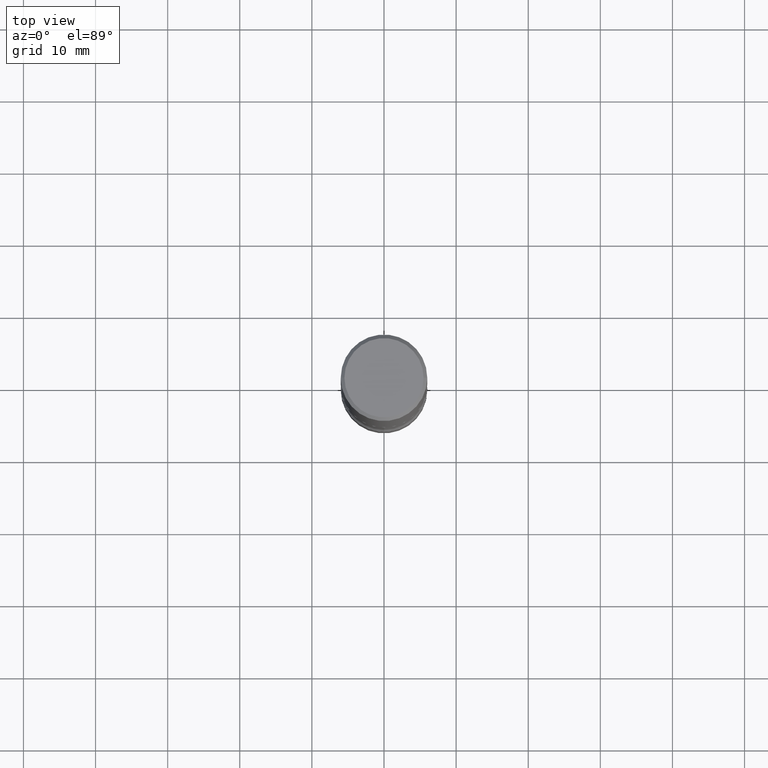
[diagram: clean part render]
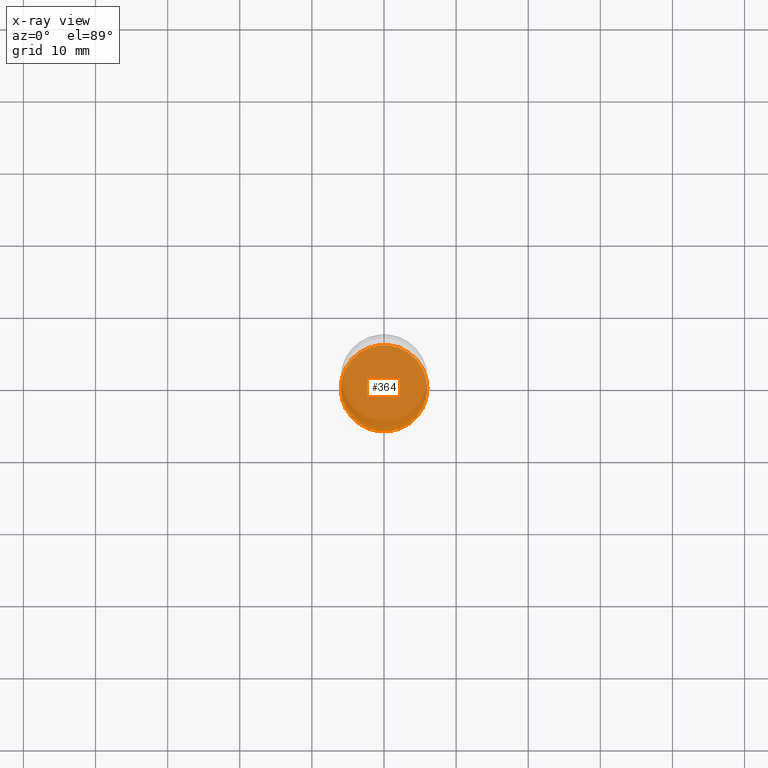
[diagram: x-ray — body ghosted, one internal face saturated and labeled with its STEP entity id]
A machine part, top view, then the same camera in x-ray: the body is ghosted and one INTERNAL B-rep face — a face not visible from any outside direction — is saturated and labeled: STEP entity #364.
In plain terms, the highlighted planar face has unit normal (0, -0, -1).
Its self-contained STEP definition (entity closure, byte-faithful):
#94 = DIRECTION ( 'NONE',  ( -1.000000000000000000, 6.982962677686265922E-15, -4.876176775795935793E-29 ) ) ;
#105 = CIRCLE ( 'NONE', #547, 0.2362000000000004096 ) ;
#139 = EDGE_CURVE ( 'NONE', #187, #487, #401, .T. ) ;
#141 = ORIENTED_EDGE ( 'NONE', *, *, #139, .T. ) ;
#187 = VERTEX_POINT ( 'NONE', #502 ) ;
#237 = DIRECTION ( 'NONE',  ( -2.445468806185136597E-29, 3.491481338843145583E-15, 1.000000000000000000 ) ) ;
#244 = CARTESIAN_POINT ( 'NONE',  ( 8.183516813017940998E-29, -1.168389315230470136E-14, -3.346399999999999597 ) ) ;
#278 = DIRECTION ( 'NONE',  ( 1.000000000000000000, -6.982962677686268288E-15, 0.000000000000000000 ) ) ;
#287 = DIRECTION ( 'NONE',  ( -2.445468806185136597E-29, 3.491481338843145583E-15, 1.000000000000000000 ) ) ;
#289 = AXIS2_PLACEMENT_3D ( 'NONE', #532, #405, #94 ) ;
#303 = ORIENTED_EDGE ( 'NONE', *, *, #531, .T. ) ;
#316 = CARTESIAN_POINT ( 'NONE',  ( -0.2362000000000004096, -1.093345237623690843E-14, -3.346399999999999597 ) ) ;
#352 = PLANE ( 'NONE',  #289 ) ;
#364 = ADVANCED_FACE ( 'NONE', ( #395 ), #352, .F. ) ;
#365 = DIRECTION ( 'NONE',  ( 1.000000000000000000, -6.982962677686268288E-15, 0.000000000000000000 ) ) ;
#395 = FACE_OUTER_BOUND ( 'NONE', #517, .T. ) ;
#401 = CIRCLE ( 'NONE', #520, 0.2362000000000004096 ) ;
#405 = DIRECTION ( 'NONE',  ( 2.438088387897960049E-29, -3.491481338843145188E-15, -1.000000000000000000 ) ) ;
#410 = CARTESIAN_POINT ( 'NONE',  ( 8.183516813017940998E-29, -1.168389315230470136E-14, -3.346399999999999597 ) ) ;
#487 = VERTEX_POINT ( 'NONE', #316 ) ;
#502 = CARTESIAN_POINT ( 'NONE',  ( 0.2362000000000004096, -1.333326893677419946E-14, -3.346399999999999597 ) ) ;
#517 = EDGE_LOOP ( 'NONE', ( #141, #303 ) ) ;
#520 = AXIS2_PLACEMENT_3D ( 'NONE', #244, #237, #365 ) ;
#531 = EDGE_CURVE ( 'NONE', #487, #187, #105, .T. ) ;
#532 = CARTESIAN_POINT ( 'NONE',  ( 1.358887160832887654E-28, -3.943117431730549939E-15, -3.346400000000000041 ) ) ;
#547 = AXIS2_PLACEMENT_3D ( 'NONE', #410, #287, #278 ) ;